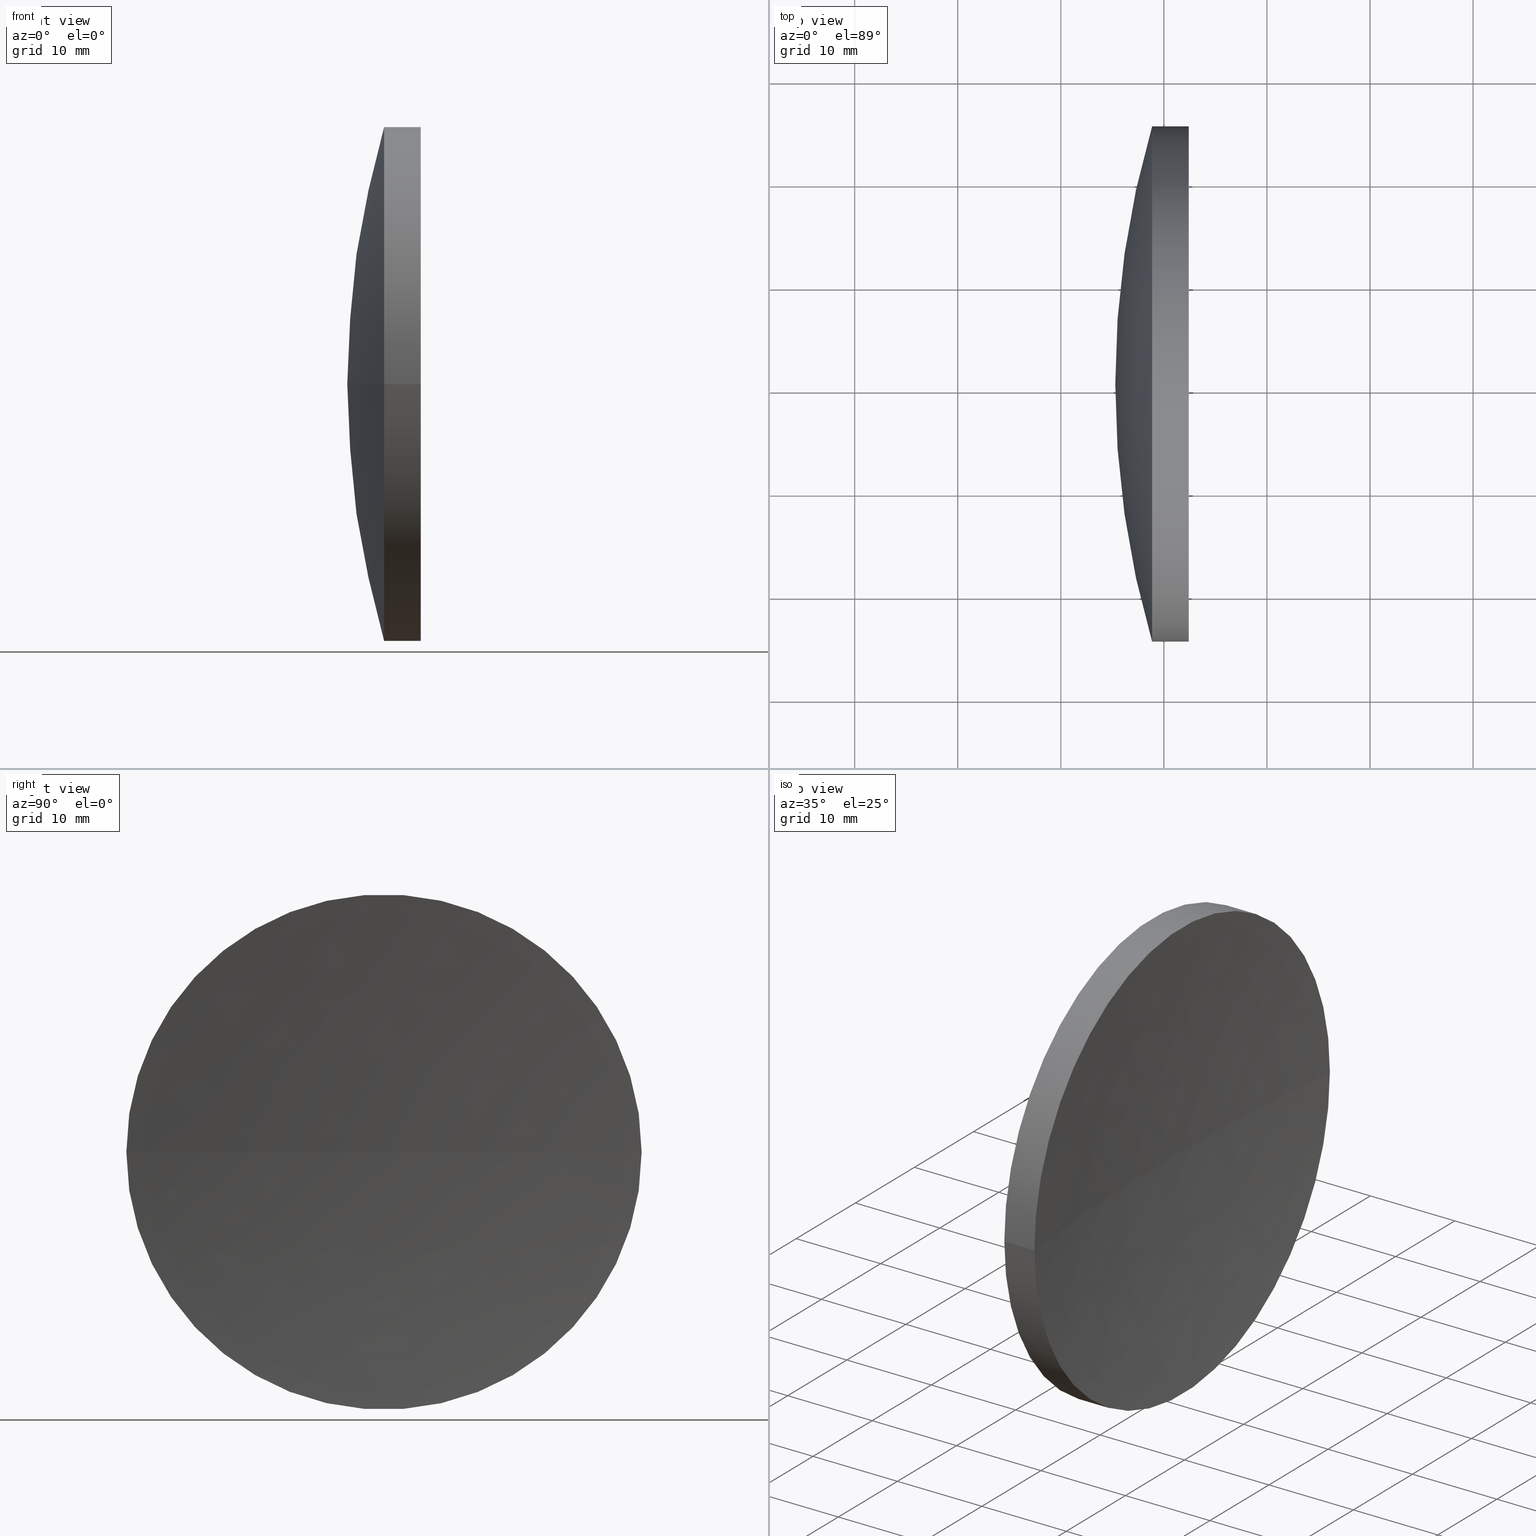
[diagram: canonical four-view strip — front | top / right | iso, engineering-drawing reading convention]
A machine part, canonical four-view strip (front | top / right | iso — engineering-drawing reading convention). The complete STEP part file that produces these views, byte-faithful:
ISO-10303-21;
HEADER;
FILE_DESCRIPTION (( 'STEP AP214' ),
    '1' );
FILE_NAME ('150022.STEP',
    '2019-07-05T01:56:47',
    ( '' ),
    ( '' ),
    'SwSTEP 2.0',
    'SolidWorks 2016',
    '' );
FILE_SCHEMA (( 'AUTOMOTIVE_DESIGN' ));
ENDSEC;

DATA;
#1 = EDGE_CURVE ( 'NONE', #116, #78, #148, .T. ) ;
#2 = EDGE_LOOP ( 'NONE', ( #47, #9, #128 ) ) ;
#3 = AXIS2_PLACEMENT_3D ( 'NONE', #127, #38, #144 ) ;
#4 = ADVANCED_FACE ( 'NONE', ( #139 ), #32, .F. ) ;
#5 = CARTESIAN_POINT ( 'NONE',  ( 0.0000000000000000000, 0.0000000000000000000, 0.0000000000000000000 ) ) ;
#6 = AXIS2_PLACEMENT_3D ( 'NONE', #72, #191, #101 ) ;
#7 = PRODUCT ( '150022', '150022', '', ( #62 ) ) ;
#8 = CARTESIAN_POINT ( 'NONE',  ( 334.4821311214901700, 130.4336809418806800, 0.0000000000000000000 ) ) ;
#9 = ORIENTED_EDGE ( 'NONE', *, *, #1, .T. ) ;
#10 =( GEOMETRIC_REPRESENTATION_CONTEXT ( 3 ) GLOBAL_UNCERTAINTY_ASSIGNED_CONTEXT ( ( #57 ) ) GLOBAL_UNIT_ASSIGNED_CONTEXT ( ( #93, #43, #106 ) ) REPRESENTATION_CONTEXT ( 'NONE', 'WORKASPACE' ) );
#11 = DIRECTION ( 'NONE',  ( 0.0000000000000000000, 1.000000000000000000, 1.224646799147353200E-016 ) ) ;
#12 = ORIENTED_EDGE ( 'NONE', *, *, #31, .F. ) ;
#13 = FILL_AREA_STYLE_COLOUR ( '', #96 ) ;
#14 = CARTESIAN_POINT ( 'NONE',  ( 487.0821311214901900, 130.4336809418806000, 0.0000000000000000000 ) ) ;
#15 = CARTESIAN_POINT ( 'NONE',  ( 251.0821311214901400, 130.4336809418804500, 0.0000000000000000000 ) ) ;
#16 = SURFACE_STYLE_FILL_AREA ( #94 ) ;
#17 = CIRCLE ( 'NONE', #75, 89.20000000000000300 ) ;
#18 = AXIS2_PLACEMENT_3D ( 'NONE', #113, #158, #129 ) ;
#19 = VERTEX_POINT ( 'NONE', #141 ) ;
#20 = ADVANCED_FACE ( 'NONE', ( #51 ), #108, .T. ) ;
#21 =( LENGTH_UNIT ( ) NAMED_UNIT ( * ) SI_UNIT ( .MILLI., .METRE. ) );
#22 = APPLICATION_CONTEXT ( 'automotive_design' ) ;
#23 = ORIENTED_EDGE ( 'NONE', *, *, #41, .F. ) ;
#24 = ADVANCED_BREP_SHAPE_REPRESENTATION ( '150022', ( #50, #154 ), #10 ) ;
#25 = EDGE_LOOP ( 'NONE', ( #37, #175, #124, #98 ) ) ;
#26 = PRODUCT_DEFINITION_CONTEXT ( 'detailed design', #22, 'design' ) ;
#27 = DIRECTION ( 'NONE',  ( 0.0000000000000000000, -1.000000000000000000, 0.0000000000000000000 ) ) ;
#28 = CARTESIAN_POINT ( 'NONE',  ( 252.4100194422366900, 130.4336809418806800, 0.0000000000000000000 ) ) ;
#29 = DIRECTION ( 'NONE',  ( -0.0000000000000000000, 0.0000000000000000000, 1.000000000000000000 ) ) ;
#30 = DIRECTION ( 'NONE',  ( 0.0000000000000000000, -1.000000000000000000, 0.0000000000000000000 ) ) ;
#31 = EDGE_CURVE ( 'NONE', #168, #135, #71, .T. ) ;
#32 = SPHERICAL_SURFACE ( 'NONE', #123, 236.0000000000000600 ) ;
#33 = EDGE_LOOP ( 'NONE', ( #169, #140, #121 ) ) ;
#34 = CARTESIAN_POINT ( 'NONE',  ( 231.8889825959263100, 155.4336809418806200, 3.061616997868379100E-015 ) ) ;
#35 = CARTESIAN_POINT ( 'NONE',  ( 248.8571347711253200, 130.4336809418806500, 0.0000000000000000000 ) ) ;
#36 = SPHERICAL_SURFACE ( 'NONE', #48, 89.20000000000000300 ) ;
#37 = ORIENTED_EDGE ( 'NONE', *, *, #130, .T. ) ;
#38 = DIRECTION ( 'NONE',  ( 0.0000000000000000000, 0.0000000000000000000, -1.000000000000000000 ) ) ;
#39 = DIRECTION ( 'NONE',  ( -0.0000000000000000000, 0.0000000000000000000, -1.000000000000000000 ) ) ;
#40 = CARTESIAN_POINT ( 'NONE',  ( 252.4100194422367500, 105.4336809418806500, -3.061616997868356600E-015 ) ) ;
#41 = EDGE_CURVE ( 'NONE', #165, #116, #181, .T. ) ;
#42 =( NAMED_UNIT ( * ) PLANE_ANGLE_UNIT ( ) SI_UNIT ( $, .RADIAN. ) );
#43 =( NAMED_UNIT ( * ) PLANE_ANGLE_UNIT ( ) SI_UNIT ( $, .RADIAN. ) );
#44 = AXIS2_PLACEMENT_3D ( 'NONE', #14, #67, #146 ) ;
#45 = CYLINDRICAL_SURFACE ( 'NONE', #18, 24.99999999999996800 ) ;
#46 = EDGE_CURVE ( 'NONE', #165, #78, #17, .T. ) ;
#47 = ORIENTED_EDGE ( 'NONE', *, *, #41, .T. ) ;
#48 = AXIS2_PLACEMENT_3D ( 'NONE', #187, #52, #161 ) ;
#49 = SURFACE_STYLE_FILL_AREA ( #162 ) ;
#50 = MANIFOLD_SOLID_BREP ( '��ת1', #82 ) ;
#51 = FACE_OUTER_BOUND ( 'NONE', #25, .T. ) ;
#52 = DIRECTION ( 'NONE',  ( -0.0000000000000000000, 0.0000000000000000000, -1.000000000000000000 ) ) ;
#53 = CARTESIAN_POINT ( 'NONE',  ( 334.4821311214901700, 130.4336809418806800, 0.0000000000000000000 ) ) ;
#54 =( NAMED_UNIT ( * ) PLANE_ANGLE_UNIT ( ) SI_UNIT ( $, .RADIAN. ) );
#55 = ORIENTED_EDGE ( 'NONE', *, *, #68, .F. ) ;
#56 = AXIS2_PLACEMENT_3D ( 'NONE', #114, #143, #30 ) ;
#57 = UNCERTAINTY_MEASURE_WITH_UNIT (LENGTH_MEASURE( 1.000000000000000100E-005 ), #93, 'distance_accuracy_value', 'NONE');
#58 = EDGE_CURVE ( 'NONE', #19, #135, #99, .T. ) ;
#59 = ORIENTED_EDGE ( 'NONE', *, *, #1, .F. ) ;
#60 = SURFACE_STYLE_USAGE ( .BOTH. , #150 ) ;
#61 = APPLICATION_PROTOCOL_DEFINITION ( 'draft international standard', 'automotive_design', 1998, #22 ) ;
#62 = PRODUCT_CONTEXT ( 'NONE', #177, 'mechanical' ) ;
#63 = LINE ( 'NONE', #34, #183 ) ;
#64 = EDGE_LOOP ( 'NONE', ( #55, #132, #86, #23 ) ) ;
#65 = AXIS2_PLACEMENT_3D ( 'NONE', #8, #184, #11 ) ;
#66 = CIRCLE ( 'NONE', #89, 25.00000000000000700 ) ;
#67 = DIRECTION ( 'NONE',  ( -8.496118506040342700E-032, 1.224646799147353200E-016, -1.000000000000000000 ) ) ;
#68 = EDGE_CURVE ( 'NONE', #19, #165, #63, .T. ) ;
#69 = CARTESIAN_POINT ( 'NONE',  ( 248.8571347711253200, 130.4336809418806500, 0.0000000000000000000 ) ) ;
#70 = CIRCLE ( 'NONE', #80, 24.99999999999992500 ) ;
#71 = CIRCLE ( 'NONE', #44, 236.0000000000000600 ) ;
#72 = CARTESIAN_POINT ( 'NONE',  ( 487.0821311214901900, 130.4336809418806000, 0.0000000000000000000 ) ) ;
#73 = STYLED_ITEM ( 'NONE', ( #125 ), #24 ) ;
#74 =( LENGTH_UNIT ( ) NAMED_UNIT ( * ) SI_UNIT ( .MILLI., .METRE. ) );
#75 = AXIS2_PLACEMENT_3D ( 'NONE', #188, #29, #111 ) ;
#76 = FACE_OUTER_BOUND ( 'NONE', #2, .T. ) ;
#77 = AXIS2_PLACEMENT_3D ( 'NONE', #170, #171, #185 ) ;
#78 = VERTEX_POINT ( 'NONE', #112 ) ;
#79 = ADVANCED_FACE ( 'NONE', ( #107 ), #45, .T. ) ;
#80 = AXIS2_PLACEMENT_3D ( 'NONE', #28, #163, #27 ) ;
#81 = DIRECTION ( 'NONE',  ( -1.000000000000000000, -6.937607244762875000E-016, -0.0000000000000000000 ) ) ;
#82 = CLOSED_SHELL ( 'NONE', ( #20, #4, #149, #118, #92, #79 ) ) ;
#83 = AXIS2_PLACEMENT_3D ( 'NONE', #53, #39, #103 ) ;
#84 =( NAMED_UNIT ( * ) SI_UNIT ( $, .STERADIAN. ) SOLID_ANGLE_UNIT ( ) );
#85 = DIRECTION ( 'NONE',  ( 1.110223024625156100E-015, -1.000000000000000000, 0.0000000000000000000 ) ) ;
#86 = ORIENTED_EDGE ( 'NONE', *, *, #142, .T. ) ;
#87 = DIRECTION ( 'NONE',  ( -1.000000000000000000, -6.937607244762875000E-016, -0.0000000000000000000 ) ) ;
#88 = UNCERTAINTY_MEASURE_WITH_UNIT (LENGTH_MEASURE( 1.000000000000000100E-005 ), #74, 'distance_accuracy_value', 'NONE');
#89 = AXIS2_PLACEMENT_3D ( 'NONE', #35, #87, #85 ) ;
#90 = EDGE_CURVE ( 'NONE', #19, #168, #70, .T. ) ;
#91 = PRODUCT_DEFINITION_FORMATION_WITH_SPECIFIED_SOURCE ( '�κ�', '', #7, .NOT_KNOWN. ) ;
#92 = ADVANCED_FACE ( 'NONE', ( #159 ), #131, .F. ) ;
#93 =( LENGTH_UNIT ( ) NAMED_UNIT ( * ) SI_UNIT ( .MILLI., .METRE. ) );
#94 = FILL_AREA_STYLE ('',( #134 ) ) ;
#95 = VECTOR ( 'NONE', #147, 1000.000000000000000 ) ;
#96 = COLOUR_RGB ( '',1.000000000000000000, 1.000000000000000000, 1.000000000000000000 ) ;
#97 =( GEOMETRIC_REPRESENTATION_CONTEXT ( 3 ) GLOBAL_UNCERTAINTY_ASSIGNED_CONTEXT ( ( #179 ) ) GLOBAL_UNIT_ASSIGNED_CONTEXT ( ( #21, #42, #167 ) ) REPRESENTATION_CONTEXT ( 'NONE', 'WORKASPACE' ) );
#98 = ORIENTED_EDGE ( 'NONE', *, *, #142, .F. ) ;
#99 = CIRCLE ( 'NONE', #6, 236.0000000000000600 ) ;
#100 = SURFACE_SIDE_STYLE ('',( #49 ) ) ;
#101 = DIRECTION ( 'NONE',  ( 1.000000000000000000, 0.0000000000000000000, 0.0000000000000000000 ) ) ;
#102 = PRODUCT_RELATED_PRODUCT_CATEGORY ( 'part', '', ( #7 ) ) ;
#103 = DIRECTION ( 'NONE',  ( -6.223223232203792000E-016, 1.000000000000000000, 0.0000000000000000000 ) ) ;
#104 = EDGE_LOOP ( 'NONE', ( #59, #160, #153 ) ) ;
#105 = FACE_OUTER_BOUND ( 'NONE', #104, .T. ) ;
#106 =( NAMED_UNIT ( * ) SI_UNIT ( $, .STERADIAN. ) SOLID_ANGLE_UNIT ( ) );
#107 = FACE_OUTER_BOUND ( 'NONE', #64, .T. ) ;
#108 = CYLINDRICAL_SURFACE ( 'NONE', #77, 24.99999999999996800 ) ;
#109 = PRODUCT_DEFINITION_SHAPE ( 'NONE', 'NONE',  #186 ) ;
#110 = ORIENTED_EDGE ( 'NONE', *, *, #90, .F. ) ;
#111 = DIRECTION ( 'NONE',  ( 1.000000000000000000, 0.0000000000000000000, 0.0000000000000000000 ) ) ;
#112 = CARTESIAN_POINT ( 'NONE',  ( 245.2821311214901500, 130.4336809418806200, 0.0000000000000000000 ) ) ;
#113 = CARTESIAN_POINT ( 'NONE',  ( 231.8889825959263400, 130.4336809418806500, 0.0000000000000000000 ) ) ;
#114 = CARTESIAN_POINT ( 'NONE',  ( 252.4100194422366900, 130.4336809418806800, 0.0000000000000000000 ) ) ;
#115 = STYLED_ITEM ( 'NONE', ( #126 ), #50 ) ;
#116 = VERTEX_POINT ( 'NONE', #192 ) ;
#117 = PRESENTATION_LAYER_ASSIGNMENT (  '', '', ( #115 ) ) ;
#118 = ADVANCED_FACE ( 'NONE', ( #105 ), #138, .T. ) ;
#119 = SHAPE_DEFINITION_REPRESENTATION ( #109, #24 ) ;
#120 = EDGE_CURVE ( 'NONE', #116, #165, #66, .T. ) ;
#121 = ORIENTED_EDGE ( 'NONE', *, *, #58, .F. ) ;
#122 = MECHANICAL_DESIGN_GEOMETRIC_PRESENTATION_REPRESENTATION (  '', ( #115 ), #176 ) ;
#123 = AXIS2_PLACEMENT_3D ( 'NONE', #156, #155, #182 ) ;
#124 = ORIENTED_EDGE ( 'NONE', *, *, #120, .F. ) ;
#125 = PRESENTATION_STYLE_ASSIGNMENT (( #60 ) ) ;
#126 = PRESENTATION_STYLE_ASSIGNMENT (( #164 ) ) ;
#127 = CARTESIAN_POINT ( 'NONE',  ( 487.0821311214901900, 130.4336809418806000, 0.0000000000000000000 ) ) ;
#128 = ORIENTED_EDGE ( 'NONE', *, *, #46, .F. ) ;
#129 = DIRECTION ( 'NONE',  ( 1.110223024625157900E-015, -1.000000000000000000, 0.0000000000000000000 ) ) ;
#130 = EDGE_CURVE ( 'NONE', #168, #19, #180, .T. ) ;
#131 = SPHERICAL_SURFACE ( 'NONE', #3, 236.0000000000000600 ) ;
#132 = ORIENTED_EDGE ( 'NONE', *, *, #90, .T. ) ;
#133 = MECHANICAL_DESIGN_GEOMETRIC_PRESENTATION_REPRESENTATION (  '', ( #73 ), #97 ) ;
#134 = FILL_AREA_STYLE_COLOUR ( '', #152 ) ;
#135 = VERTEX_POINT ( 'NONE', #15 ) ;
#136 = APPLICATION_PROTOCOL_DEFINITION ( 'draft international standard', 'automotive_design', 1998, #177 ) ;
#137 = CARTESIAN_POINT ( 'NONE',  ( 248.8571347711252600, 155.4336809418806500, 0.0000000000000000000 ) ) ;
#138 = SPHERICAL_SURFACE ( 'NONE', #83, 89.20000000000000300 ) ;
#139 = FACE_OUTER_BOUND ( 'NONE', #33, .T. ) ;
#140 = ORIENTED_EDGE ( 'NONE', *, *, #31, .T. ) ;
#141 = CARTESIAN_POINT ( 'NONE',  ( 252.4100194422366900, 155.4336809418804500, 0.0000000000000000000 ) ) ;
#142 = EDGE_CURVE ( 'NONE', #168, #116, #151, .T. ) ;
#143 = DIRECTION ( 'NONE',  ( -1.000000000000000000, -6.937607244762875000E-016, -0.0000000000000000000 ) ) ;
#144 = DIRECTION ( 'NONE',  ( -7.056502275159891200E-016, 1.000000000000000000, 0.0000000000000000000 ) ) ;
#145 = PRESENTATION_LAYER_ASSIGNMENT (  '', '', ( #73 ) ) ;
#146 = DIRECTION ( 'NONE',  ( 0.0000000000000000000, 1.000000000000000000, 1.224646799147353000E-016 ) ) ;
#147 = DIRECTION ( 'NONE',  ( -1.000000000000000000, -6.937607244762875000E-016, -0.0000000000000000000 ) ) ;
#148 = CIRCLE ( 'NONE', #65, 89.20000000000000300 ) ;
#149 = ADVANCED_FACE ( 'NONE', ( #76 ), #36, .T. ) ;
#150 = SURFACE_SIDE_STYLE ('',( #16 ) ) ;
#151 = LINE ( 'NONE', #173, #95 ) ;
#152 = COLOUR_RGB ( '',1.000000000000000000, 1.000000000000000000, 1.000000000000000000 ) ;
#153 = ORIENTED_EDGE ( 'NONE', *, *, #46, .T. ) ;
#154 = AXIS2_PLACEMENT_3D ( 'NONE', #5, #178, #166 ) ;
#155 = DIRECTION ( 'NONE',  ( 0.0000000000000000000, 0.0000000000000000000, -1.000000000000000000 ) ) ;
#156 = CARTESIAN_POINT ( 'NONE',  ( 487.0821311214901900, 130.4336809418806000, 0.0000000000000000000 ) ) ;
#157 = AXIS2_PLACEMENT_3D ( 'NONE', #69, #174, #190 ) ;
#158 = DIRECTION ( 'NONE',  ( -1.000000000000000000, -6.937607244762875000E-016, -0.0000000000000000000 ) ) ;
#159 = FACE_OUTER_BOUND ( 'NONE', #172, .T. ) ;
#160 = ORIENTED_EDGE ( 'NONE', *, *, #120, .T. ) ;
#161 = DIRECTION ( 'NONE',  ( -6.223223232203792000E-016, 1.000000000000000000, 0.0000000000000000000 ) ) ;
#162 = FILL_AREA_STYLE ('',( #13 ) ) ;
#163 = DIRECTION ( 'NONE',  ( -1.000000000000000000, -6.937607244762875000E-016, -0.0000000000000000000 ) ) ;
#164 = SURFACE_STYLE_USAGE ( .BOTH. , #100 ) ;
#165 = VERTEX_POINT ( 'NONE', #137 ) ;
#166 = DIRECTION ( 'NONE',  ( 1.000000000000000000, 0.0000000000000000000, 0.0000000000000000000 ) ) ;
#167 =( NAMED_UNIT ( * ) SI_UNIT ( $, .STERADIAN. ) SOLID_ANGLE_UNIT ( ) );
#168 = VERTEX_POINT ( 'NONE', #40 ) ;
#169 = ORIENTED_EDGE ( 'NONE', *, *, #130, .F. ) ;
#170 = CARTESIAN_POINT ( 'NONE',  ( 231.8889825959263400, 130.4336809418806500, 0.0000000000000000000 ) ) ;
#171 = DIRECTION ( 'NONE',  ( -1.000000000000000000, -6.937607244762875000E-016, -0.0000000000000000000 ) ) ;
#172 = EDGE_LOOP ( 'NONE', ( #12, #110, #189 ) ) ;
#173 = CARTESIAN_POINT ( 'NONE',  ( 231.8889825959263600, 105.4336809418806800, 0.0000000000000000000 ) ) ;
#174 = DIRECTION ( 'NONE',  ( -1.000000000000000000, -6.937607244762875000E-016, -0.0000000000000000000 ) ) ;
#175 = ORIENTED_EDGE ( 'NONE', *, *, #68, .T. ) ;
#176 =( GEOMETRIC_REPRESENTATION_CONTEXT ( 3 ) GLOBAL_UNCERTAINTY_ASSIGNED_CONTEXT ( ( #88 ) ) GLOBAL_UNIT_ASSIGNED_CONTEXT ( ( #74, #54, #84 ) ) REPRESENTATION_CONTEXT ( 'NONE', 'WORKASPACE' ) );
#177 = APPLICATION_CONTEXT ( 'automotive_design' ) ;
#178 = DIRECTION ( 'NONE',  ( 0.0000000000000000000, 0.0000000000000000000, 1.000000000000000000 ) ) ;
#179 = UNCERTAINTY_MEASURE_WITH_UNIT (LENGTH_MEASURE( 1.000000000000000100E-005 ), #21, 'distance_accuracy_value', 'NONE');
#180 = CIRCLE ( 'NONE', #56, 24.99999999999992500 ) ;
#181 = CIRCLE ( 'NONE', #157, 25.00000000000000700 ) ;
#182 = DIRECTION ( 'NONE',  ( -7.056502275159891200E-016, 1.000000000000000000, 0.0000000000000000000 ) ) ;
#183 = VECTOR ( 'NONE', #81, 1000.000000000000000 ) ;
#184 = DIRECTION ( 'NONE',  ( -8.496118506040342700E-032, 1.224646799147353200E-016, -1.000000000000000000 ) ) ;
#185 = DIRECTION ( 'NONE',  ( 1.110223024625157900E-015, -1.000000000000000000, 0.0000000000000000000 ) ) ;
#186 = PRODUCT_DEFINITION ( 'δ֪', '', #91, #26 ) ;
#187 = CARTESIAN_POINT ( 'NONE',  ( 334.4821311214901700, 130.4336809418806800, 0.0000000000000000000 ) ) ;
#188 = CARTESIAN_POINT ( 'NONE',  ( 334.4821311214901700, 130.4336809418806800, 0.0000000000000000000 ) ) ;
#189 = ORIENTED_EDGE ( 'NONE', *, *, #58, .T. ) ;
#190 = DIRECTION ( 'NONE',  ( 1.110223024625156100E-015, -1.000000000000000000, 0.0000000000000000000 ) ) ;
#191 = DIRECTION ( 'NONE',  ( 0.0000000000000000000, -0.0000000000000000000, 1.000000000000000000 ) ) ;
#192 = CARTESIAN_POINT ( 'NONE',  ( 248.8571347711253200, 105.4336809418806200, -3.061616997868384200E-015 ) ) ;
ENDSEC;
END-ISO-10303-21;
